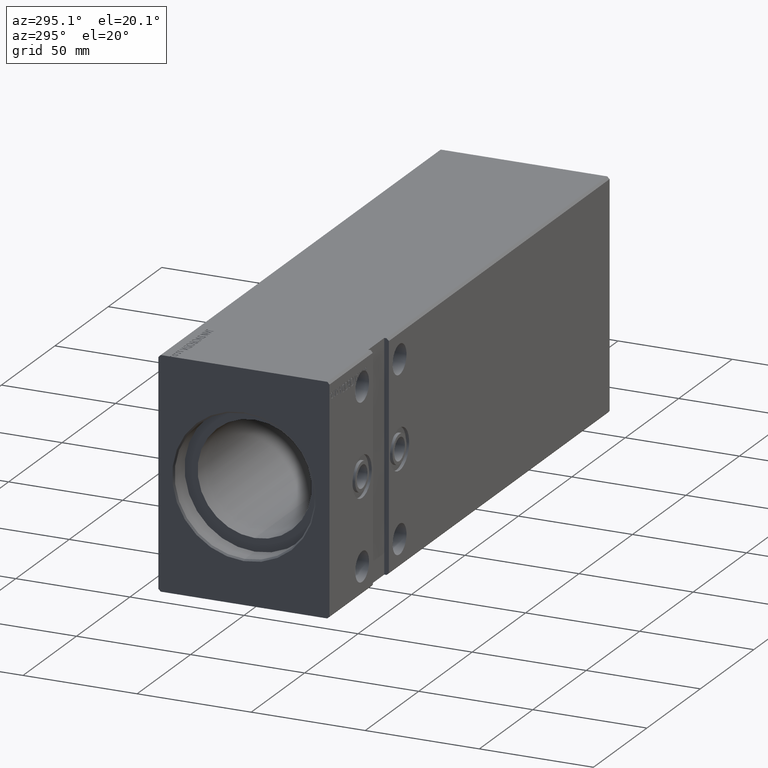
[diagram: clean part render]
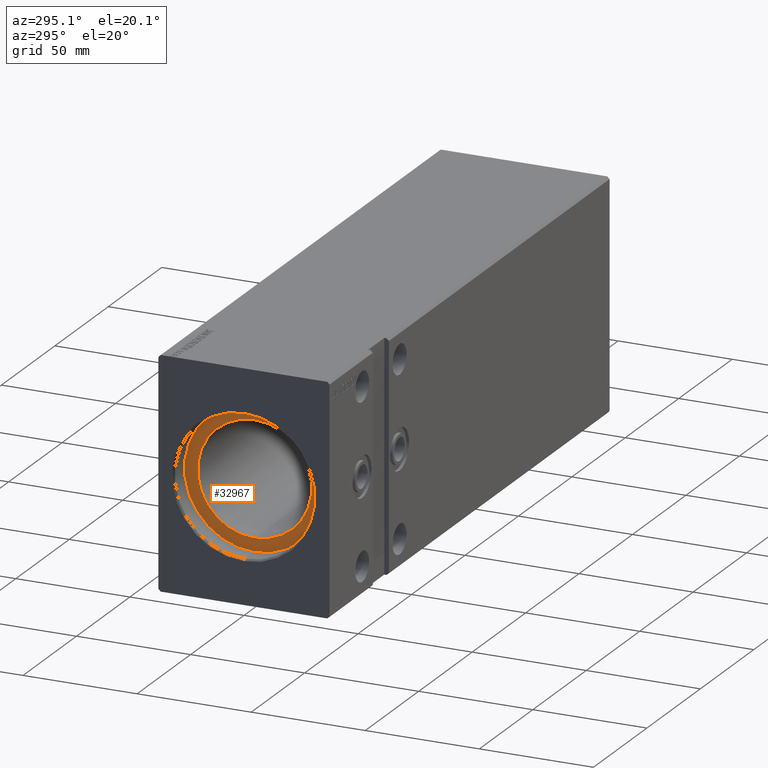
[diagram: same view with one face highlighted and labeled with its STEP entity id]
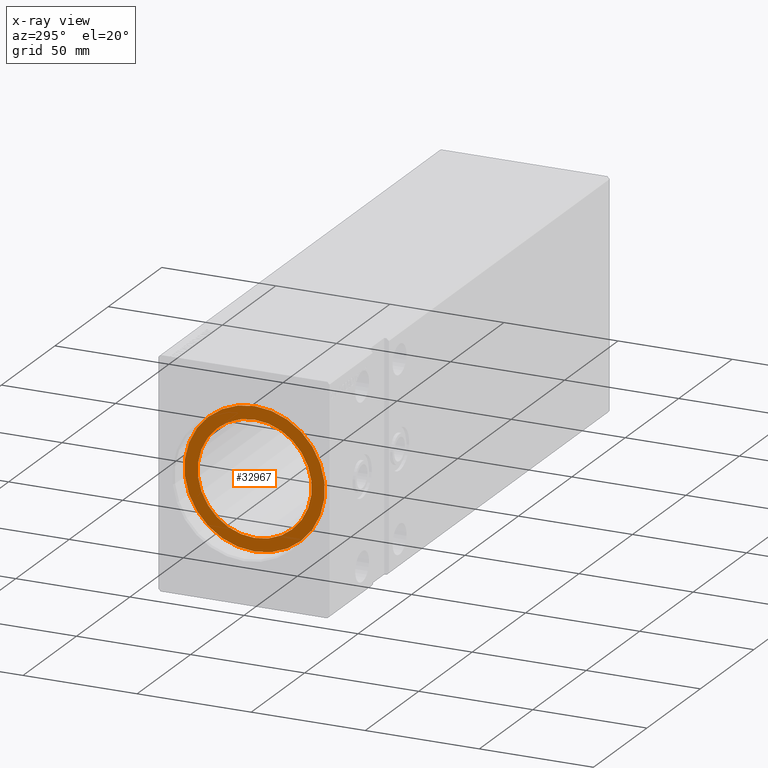
[diagram: x-ray of the same camera — body ghosted, the highlighted face saturated]
A machine part, auxiliary view. The second image highlights one B-rep face of the part: STEP entity #32967.
The next image is the same camera in x-ray: the body ghosted, the highlighted face saturated — about 0% of this face is hidden behind the body in this view.
In plain terms, the highlighted planar face has unit normal (-1, 0, 0).
Its self-contained STEP definition (entity closure, byte-faithful):
#36 = CARTESIAN_POINT ( 'NONE',  ( 10.00000000000000000, 0.000000000000000000, 0.000000000000000000 ) ) ;
#218 = VERTEX_POINT ( 'NONE', #27071 ) ;
#1125 = ORIENTED_EDGE ( 'NONE', *, *, #5163, .F. ) ;
#2172 = CIRCLE ( 'NONE', #9422, 25.00000000000000000 ) ;
#2792 = DIRECTION ( 'NONE',  ( 0.000000000000000000, 0.000000000000000000, 1.000000000000000000 ) ) ;
#4340 = DIRECTION ( 'NONE',  ( 0.000000000000000000, 0.000000000000000000, 1.000000000000000000 ) ) ;
#5069 = AXIS2_PLACEMENT_3D ( 'NONE', #34121, #12078, #2792 ) ;
#5163 = EDGE_CURVE ( 'NONE', #16588, #34435, #17571, .T. ) ;
#5944 = AXIS2_PLACEMENT_3D ( 'NONE', #36, #28056, #30952 ) ;
#6073 = DIRECTION ( 'NONE',  ( 0.000000000000000000, 0.000000000000000000, 1.000000000000000000 ) ) ;
#6430 = FACE_OUTER_BOUND ( 'NONE', #35467, .T. ) ;
#6722 = AXIS2_PLACEMENT_3D ( 'NONE', #35661, #7430, #4340 ) ;
#7430 = DIRECTION ( 'NONE',  ( -1.000000000000000000, 0.000000000000000000, 0.000000000000000000 ) ) ;
#9422 = AXIS2_PLACEMENT_3D ( 'NONE', #21081, #17989, #36723 ) ;
#11177 = VERTEX_POINT ( 'NONE', #28236 ) ;
#11388 = CIRCLE ( 'NONE', #34418, 30.75000000000000355 ) ;
#12078 = DIRECTION ( 'NONE',  ( -1.000000000000000000, 0.000000000000000000, 0.000000000000000000 ) ) ;
#12639 = CIRCLE ( 'NONE', #6722, 30.75000000000000355 ) ;
#15843 = ORIENTED_EDGE ( 'NONE', *, *, #37887, .T. ) ;
#16588 = VERTEX_POINT ( 'NONE', #22731 ) ;
#17571 = CIRCLE ( 'NONE', #5069, 25.00000000000000000 ) ;
#17989 = DIRECTION ( 'NONE',  ( -1.000000000000000000, 0.000000000000000000, 0.000000000000000000 ) ) ;
#20691 = EDGE_CURVE ( 'NONE', #218, #11177, #11388, .T. ) ;
#21081 = CARTESIAN_POINT ( 'NONE',  ( 10.00000000000000888, 0.000000000000000000, 0.000000000000000000 ) ) ;
#21614 = EDGE_CURVE ( 'NONE', #34435, #16588, #2172, .T. ) ;
#22731 = CARTESIAN_POINT ( 'NONE',  ( 10.00000000000000888, 0.000000000000000000, 25.00000000000000000 ) ) ;
#27071 = CARTESIAN_POINT ( 'NONE',  ( 10.00000000000000000, 0.000000000000000000, 30.75000000000000355 ) ) ;
#28056 = DIRECTION ( 'NONE',  ( -1.000000000000000000, 0.000000000000000000, 0.000000000000000000 ) ) ;
#28236 = CARTESIAN_POINT ( 'NONE',  ( 10.00000000000000000, 3.765788907378111328E-15, -30.75000000000000355 ) ) ;
#30952 = DIRECTION ( 'NONE',  ( 0.000000000000000000, 0.000000000000000000, 1.000000000000000000 ) ) ;
#31623 = CARTESIAN_POINT ( 'NONE',  ( 10.00000000000000888, 3.061616997868382254E-15, -25.00000000000000000 ) ) ;
#32967 = ADVANCED_FACE ( 'NONE', ( #37140, #6430 ), #40432, .T. ) ;
#34121 = CARTESIAN_POINT ( 'NONE',  ( 10.00000000000000888, 0.000000000000000000, 0.000000000000000000 ) ) ;
#34418 = AXIS2_PLACEMENT_3D ( 'NONE', #34703, #37979, #6073 ) ;
#34435 = VERTEX_POINT ( 'NONE', #31623 ) ;
#34703 = CARTESIAN_POINT ( 'NONE',  ( 10.00000000000000000, 0.000000000000000000, 0.000000000000000000 ) ) ;
#34731 = EDGE_LOOP ( 'NONE', ( #1125, #35033 ) ) ;
#35033 = ORIENTED_EDGE ( 'NONE', *, *, #21614, .F. ) ;
#35467 = EDGE_LOOP ( 'NONE', ( #36759, #15843 ) ) ;
#35661 = CARTESIAN_POINT ( 'NONE',  ( 10.00000000000000000, 0.000000000000000000, 0.000000000000000000 ) ) ;
#36723 = DIRECTION ( 'NONE',  ( 0.000000000000000000, 0.000000000000000000, 1.000000000000000000 ) ) ;
#36759 = ORIENTED_EDGE ( 'NONE', *, *, #20691, .T. ) ;
#37140 = FACE_BOUND ( 'NONE', #34731, .T. ) ;
#37887 = EDGE_CURVE ( 'NONE', #11177, #218, #12639, .T. ) ;
#37979 = DIRECTION ( 'NONE',  ( -1.000000000000000000, 0.000000000000000000, 0.000000000000000000 ) ) ;
#40432 = PLANE ( 'NONE',  #5944 ) ;